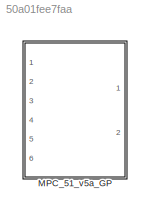
MODEL slx_50a01fee7faa
KIND library
CONFIG AbsTol = auto
CONFIG EnableMultiTasking = off
CONFIG FixedStep = auto
CONFIG MaxStep = auto
CONFIG MinStep = auto
CONFIG RelTol = 1e-3
CONFIG SampleTimeConstraint = Unconstrained
CONFIG Solver = VariableStepAuto
CONFIG SolverName = VariableStepAuto
CONFIG StartTime = 0.0
CONFIG StopTime = 10.0
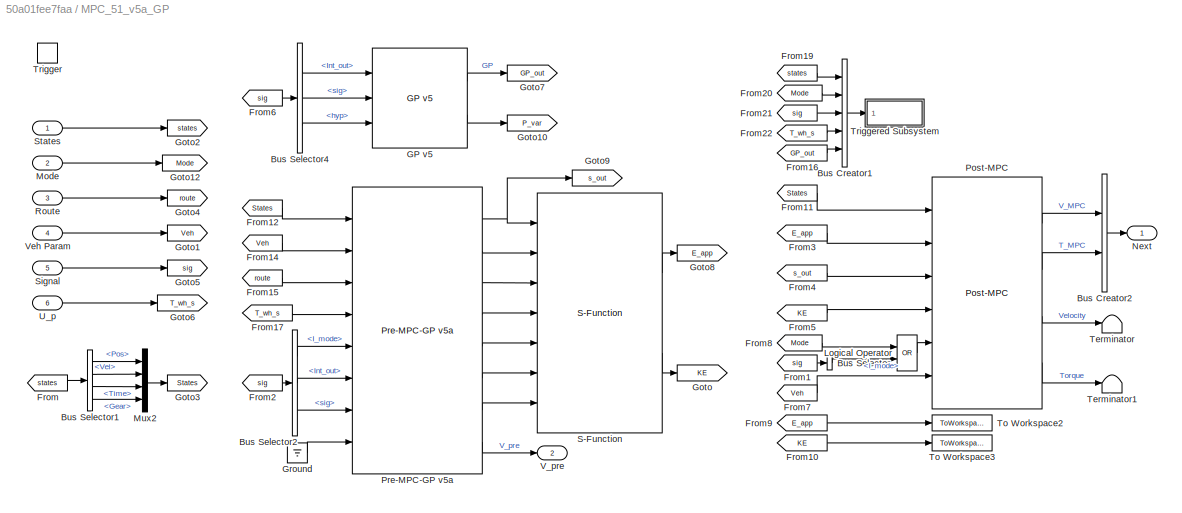
BLOCK [SubSystem] MPC_51_v5a_GP
  Ports = [6, 2, 0, 1]
  RequestExecContextInheritance = off
  TreatAsAtomicUnit = on
BLOCK [BusCreator] MPC_51_v5a_GP/Bus Creator1
  DisplayOption = bar
  InheritFromInputs = on
  Inputs = 5
  Ports = [5, 1]
BLOCK [BusCreator] MPC_51_v5a_GP/Bus Creator2
  DisplayOption = bar
  InheritFromInputs = on
  Inputs = 2
  Ports = [2, 1]
BLOCK [BusSelector] MPC_51_v5a_GP/Bus Selector
  OutputSignals = Signal.I_mode
  Ports = [1, 1]
BLOCK [BusSelector] MPC_51_v5a_GP/Bus Selector1
  OutputSignals = Pos,Vel,Time,Gear
  Ports = [1, 4]
BLOCK [BusSelector] MPC_51_v5a_GP/Bus Selector2
  OutputSignals = I_mode,Int_out,sig
  Ports = [1, 3]
BLOCK [BusSelector] MPC_51_v5a_GP/Bus Selector4
  Commented = on
  OutputSignals = Int_out,sig,hyp
  Ports = [1, 3]
BLOCK [From] MPC_51_v5a_GP/From
  GotoTag = states
BLOCK [From] MPC_51_v5a_GP/From1
  GotoTag = sig
BLOCK [From] MPC_51_v5a_GP/From10
  GotoTag = KE
BLOCK [From] MPC_51_v5a_GP/From11
  GotoTag = States
BLOCK [From] MPC_51_v5a_GP/From12
  GotoTag = States
BLOCK [From] MPC_51_v5a_GP/From14
  GotoTag = Veh
BLOCK [From] MPC_51_v5a_GP/From15
  GotoTag = route
BLOCK [From] MPC_51_v5a_GP/From16
  GotoTag = GP_out
BLOCK [From] MPC_51_v5a_GP/From17
  GotoTag = T_wh_s
BLOCK [From] MPC_51_v5a_GP/From19
  GotoTag = states
BLOCK [From] MPC_51_v5a_GP/From2
  GotoTag = sig
BLOCK [From] MPC_51_v5a_GP/From20
  GotoTag = Mode
BLOCK [From] MPC_51_v5a_GP/From21
  GotoTag = sig
BLOCK [From] MPC_51_v5a_GP/From22
  GotoTag = T_wh_s
BLOCK [From] MPC_51_v5a_GP/From3
  GotoTag = E_app
BLOCK [From] MPC_51_v5a_GP/From4
  GotoTag = s_out
BLOCK [From] MPC_51_v5a_GP/From5
  GotoTag = KE
BLOCK [From] MPC_51_v5a_GP/From6
  Commented = on
  GotoTag = sig
BLOCK [From] MPC_51_v5a_GP/From7
  GotoTag = Veh
BLOCK [From] MPC_51_v5a_GP/From8
  GotoTag = Mode
BLOCK [From] MPC_51_v5a_GP/From9
  GotoTag = E_app
BLOCK [Reference] MPC_51_v5a_GP/GP v5  REF=MPC_Sublibraries/GP v5
  Commented = on
  Ports = [3, 2]
  SourceBlock = MPC_Sublibraries/GP v5
BLOCK [Goto] MPC_51_v5a_GP/Goto
  GotoTag = KE
BLOCK [Goto] MPC_51_v5a_GP/Goto1
  GotoTag = Veh
BLOCK [Goto] MPC_51_v5a_GP/Goto10
  Commented = on
  GotoTag = P_var
BLOCK [Goto] MPC_51_v5a_GP/Goto12
  GotoTag = Mode
BLOCK [Goto] MPC_51_v5a_GP/Goto2
  GotoTag = states
BLOCK [Goto] MPC_51_v5a_GP/Goto3
  GotoTag = States
BLOCK [Goto] MPC_51_v5a_GP/Goto4
  GotoTag = route
BLOCK [Goto] MPC_51_v5a_GP/Goto5
  GotoTag = sig
BLOCK [Goto] MPC_51_v5a_GP/Goto6
  GotoTag = T_wh_s
BLOCK [Goto] MPC_51_v5a_GP/Goto7
  Commented = on
  GotoTag = GP_out
BLOCK [Goto] MPC_51_v5a_GP/Goto8
  GotoTag = E_app
BLOCK [Goto] MPC_51_v5a_GP/Goto9
  GotoTag = s_out
BLOCK [Ground] MPC_51_v5a_GP/Ground
BLOCK [Logic] MPC_51_v5a_GP/Logical Operator
  AllPortsSameDT = off
  Operator = OR
  OutDataTypeStr = boolean
  Ports = [2, 1]
BLOCK [Inport] MPC_51_v5a_GP/Mode
  Port = 2
BLOCK [Mux] MPC_51_v5a_GP/Mux2
  DisplayOption = bar
  Ports = [4, 1]
BLOCK [Outport] MPC_51_v5a_GP/Next
  VectorParamsAs1DForOutWhenUnconnected = off
BLOCK [Reference] MPC_51_v5a_GP/Post-MPC  REF=MPC_Sublibraries/Post-MPC
  Ports = [6, 4]
  SourceBlock = MPC_Sublibraries/Post-MPC
BLOCK [Reference] MPC_51_v5a_GP/Pre-MPC-GP v5a  REF=MPC_Sublibraries/Pre-MPC-GP v5a
  Ports = [8, 8]
  SourceBlock = MPC_Sublibraries/Pre-MPC-GP v5a
BLOCK [Inport] MPC_51_v5a_GP/Route
  Port = 3
BLOCK [Reference] MPC_51_v5a_GP/S-Function  REF=MPC_Sublibraries/S-Function
  Ports = [7, 2]
  SourceBlock = MPC_Sublibraries/S-Function
BLOCK [Inport] MPC_51_v5a_GP/Signal
  Port = 5
BLOCK [Inport] MPC_51_v5a_GP/States
BLOCK [Terminator] MPC_51_v5a_GP/Terminator
BLOCK [Terminator] MPC_51_v5a_GP/Terminator1
BLOCK [ToWorkspace] MPC_51_v5a_GP/To Workspace2
  FixptAsFi = on
  MaxDataPoints = inf
  Ports = [1]
  SampleTime = -1
  VariableName = E_app
BLOCK [ToWorkspace] MPC_51_v5a_GP/To Workspace3
  FixptAsFi = on
  MaxDataPoints = inf
  Ports = [1]
  SampleTime = -1
  VariableName = KE
BLOCK [TriggerPort] MPC_51_v5a_GP/Trigger
  Ports = []
  StatesWhenEnabling = held
  TriggerType = falling
  VariantControl = Variant
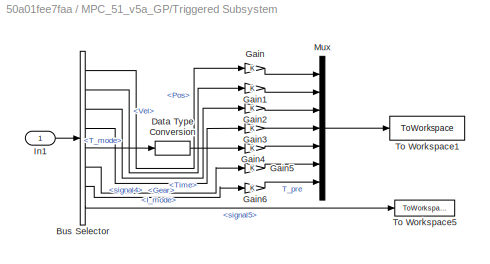
BLOCK [SubSystem] MPC_51_v5a_GP/Triggered Subsystem
  Ports = [1]
  RequestExecContextInheritance = off
  TreatAsAtomicUnit = on
BLOCK [BusSelector] MPC_51_v5a_GP/Triggered Subsystem/Bus Selector
  OutputSignals = signal1.Pos,signal1.Vel,signal1.Time,signal1.Gear,signal2.T_mode,signal3.I_mode,signal4,signal5
  Ports = [1, 8]
BLOCK [DataTypeConversion] MPC_51_v5a_GP/Triggered Subsystem/Data Type Conversion
  OutDataTypeStr = double
  RndMeth = Floor
  SaturateOnIntegerOverflow = off
BLOCK [Gain] MPC_51_v5a_GP/Triggered Subsystem/Gain
BLOCK [Gain] MPC_51_v5a_GP/Triggered Subsystem/Gain1
BLOCK [Gain] MPC_51_v5a_GP/Triggered Subsystem/Gain2
BLOCK [Gain] MPC_51_v5a_GP/Triggered Subsystem/Gain3
BLOCK [Gain] MPC_51_v5a_GP/Triggered Subsystem/Gain4
BLOCK [Gain] MPC_51_v5a_GP/Triggered Subsystem/Gain5
BLOCK [Gain] MPC_51_v5a_GP/Triggered Subsystem/Gain6
BLOCK [Inport] MPC_51_v5a_GP/Triggered Subsystem/In1
BLOCK [Mux] MPC_51_v5a_GP/Triggered Subsystem/Mux
  DisplayOption = bar
  Inputs = 7
  Ports = [7, 1]
BLOCK [ToWorkspace] MPC_51_v5a_GP/Triggered Subsystem/To Workspace1
  MaxDataPoints = inf
  Ports = [1]
  SampleTime = -1
  SaveFormat = Structure With Time
  VariableName = MPC_input
BLOCK [ToWorkspace] MPC_51_v5a_GP/Triggered Subsystem/To Workspace5
  MaxDataPoints = inf
  Ports = [1]
  SampleTime = -1
  VariableName = GP_out
BLOCK [Inport] MPC_51_v5a_GP/U_p
  Port = 6
BLOCK [Outport] MPC_51_v5a_GP/V_pre
  Port = 2
  VectorParamsAs1DForOutWhenUnconnected = off
BLOCK [Inport] MPC_51_v5a_GP/Veh Param
  Port = 4
LINE MPC_51_v5a_GP/Bus Creator1:1 -> MPC_51_v5a_GP/Triggered Subsystem:1
LINE MPC_51_v5a_GP/Bus Creator2:1 -> MPC_51_v5a_GP/Next:1
LINE MPC_51_v5a_GP/Bus Selector1:1 -> MPC_51_v5a_GP/Mux2:1
LINE MPC_51_v5a_GP/Bus Selector1:2 -> MPC_51_v5a_GP/Mux2:2
LINE MPC_51_v5a_GP/Bus Selector1:3 -> MPC_51_v5a_GP/Mux2:3
LINE MPC_51_v5a_GP/Bus Selector1:4 -> MPC_51_v5a_GP/Mux2:4
LINE MPC_51_v5a_GP/Bus Selector2:1 -> MPC_51_v5a_GP/Pre-MPC-GP v5a:5
LINE MPC_51_v5a_GP/Bus Selector2:2 -> MPC_51_v5a_GP/Pre-MPC-GP v5a:6
LINE MPC_51_v5a_GP/Bus Selector2:3 -> MPC_51_v5a_GP/Pre-MPC-GP v5a:7
LINE MPC_51_v5a_GP/Bus Selector4:1 -> MPC_51_v5a_GP/GP v5:1
LINE MPC_51_v5a_GP/Bus Selector4:2 -> MPC_51_v5a_GP/GP v5:2
LINE MPC_51_v5a_GP/Bus Selector4:3 -> MPC_51_v5a_GP/GP v5:3
LINE MPC_51_v5a_GP/Bus Selector:1 -> MPC_51_v5a_GP/Logical Operator:2
LINE MPC_51_v5a_GP/From10:1 -> MPC_51_v5a_GP/To Workspace3:1
LINE MPC_51_v5a_GP/From11:1 -> MPC_51_v5a_GP/Post-MPC:1
LINE MPC_51_v5a_GP/From12:1 -> MPC_51_v5a_GP/Pre-MPC-GP v5a:1
LINE MPC_51_v5a_GP/From14:1 -> MPC_51_v5a_GP/Pre-MPC-GP v5a:2
LINE MPC_51_v5a_GP/From15:1 -> MPC_51_v5a_GP/Pre-MPC-GP v5a:3
LINE MPC_51_v5a_GP/From16:1 -> MPC_51_v5a_GP/Bus Creator1:5
LINE MPC_51_v5a_GP/From17:1 -> MPC_51_v5a_GP/Pre-MPC-GP v5a:4
LINE MPC_51_v5a_GP/From19:1 -> MPC_51_v5a_GP/Bus Creator1:1
LINE MPC_51_v5a_GP/From1:1 -> MPC_51_v5a_GP/Bus Selector:1
LINE MPC_51_v5a_GP/From20:1 -> MPC_51_v5a_GP/Bus Creator1:2
LINE MPC_51_v5a_GP/From21:1 -> MPC_51_v5a_GP/Bus Creator1:3
LINE MPC_51_v5a_GP/From22:1 -> MPC_51_v5a_GP/Bus Creator1:4
LINE MPC_51_v5a_GP/From2:1 -> MPC_51_v5a_GP/Bus Selector2:1
LINE MPC_51_v5a_GP/From3:1 -> MPC_51_v5a_GP/Post-MPC:2
LINE MPC_51_v5a_GP/From4:1 -> MPC_51_v5a_GP/Post-MPC:3
LINE MPC_51_v5a_GP/From5:1 -> MPC_51_v5a_GP/Post-MPC:4
LINE MPC_51_v5a_GP/From6:1 -> MPC_51_v5a_GP/Bus Selector4:1
LINE MPC_51_v5a_GP/From7:1 -> MPC_51_v5a_GP/Post-MPC:6
LINE MPC_51_v5a_GP/From8:1 -> MPC_51_v5a_GP/Logical Operator:1
LINE MPC_51_v5a_GP/From9:1 -> MPC_51_v5a_GP/To Workspace2:1
LINE MPC_51_v5a_GP/From:1 -> MPC_51_v5a_GP/Bus Selector1:1
LINE MPC_51_v5a_GP/GP v5:1 -> MPC_51_v5a_GP/Goto7:1
LINE MPC_51_v5a_GP/GP v5:2 -> MPC_51_v5a_GP/Goto10:1
LINE MPC_51_v5a_GP/Ground:1 -> MPC_51_v5a_GP/Pre-MPC-GP v5a:8
LINE MPC_51_v5a_GP/Logical Operator:1 -> MPC_51_v5a_GP/Post-MPC:5
LINE MPC_51_v5a_GP/Mode:1 -> MPC_51_v5a_GP/Goto12:1
LINE MPC_51_v5a_GP/Mux2:1 -> MPC_51_v5a_GP/Goto3:1
LINE MPC_51_v5a_GP/Post-MPC:1 -> MPC_51_v5a_GP/Bus Creator2:1
LINE MPC_51_v5a_GP/Post-MPC:2 -> MPC_51_v5a_GP/Bus Creator2:2
LINE MPC_51_v5a_GP/Post-MPC:3 -> MPC_51_v5a_GP/Terminator:1
LINE MPC_51_v5a_GP/Post-MPC:4 -> MPC_51_v5a_GP/Terminator1:1
NET MPC_51_v5a_GP/Pre-MPC-GP v5a:1 -> MPC_51_v5a_GP/Goto9:1, MPC_51_v5a_GP/S-Function:1
LINE MPC_51_v5a_GP/Pre-MPC-GP v5a:2 -> MPC_51_v5a_GP/S-Function:2
LINE MPC_51_v5a_GP/Pre-MPC-GP v5a:3 -> MPC_51_v5a_GP/S-Function:3
LINE MPC_51_v5a_GP/Pre-MPC-GP v5a:4 -> MPC_51_v5a_GP/S-Function:4
LINE MPC_51_v5a_GP/Pre-MPC-GP v5a:5 -> MPC_51_v5a_GP/S-Function:5
LINE MPC_51_v5a_GP/Pre-MPC-GP v5a:6 -> MPC_51_v5a_GP/S-Function:6
LINE MPC_51_v5a_GP/Pre-MPC-GP v5a:7 -> MPC_51_v5a_GP/S-Function:7
LINE MPC_51_v5a_GP/Pre-MPC-GP v5a:8 -> MPC_51_v5a_GP/V_pre:1
LINE MPC_51_v5a_GP/Route:1 -> MPC_51_v5a_GP/Goto4:1
LINE MPC_51_v5a_GP/S-Function:1 -> MPC_51_v5a_GP/Goto8:1
LINE MPC_51_v5a_GP/S-Function:2 -> MPC_51_v5a_GP/Goto:1
LINE MPC_51_v5a_GP/Signal:1 -> MPC_51_v5a_GP/Goto5:1
LINE MPC_51_v5a_GP/States:1 -> MPC_51_v5a_GP/Goto2:1
LINE MPC_51_v5a_GP/Triggered Subsystem/Bus Selector:1 -> MPC_51_v5a_GP/Triggered Subsystem/Gain:1
LINE MPC_51_v5a_GP/Triggered Subsystem/Bus Selector:2 -> MPC_51_v5a_GP/Triggered Subsystem/Gain1:1
LINE MPC_51_v5a_GP/Triggered Subsystem/Bus Selector:3 -> MPC_51_v5a_GP/Triggered Subsystem/Gain2:1
LINE MPC_51_v5a_GP/Triggered Subsystem/Bus Selector:4 -> MPC_51_v5a_GP/Triggered Subsystem/Gain3:1
LINE MPC_51_v5a_GP/Triggered Subsystem/Bus Selector:5 -> MPC_51_v5a_GP/Triggered Subsystem/Data Type Conversion:1
LINE MPC_51_v5a_GP/Triggered Subsystem/Bus Selector:6 -> MPC_51_v5a_GP/Triggered Subsystem/Gain5:1
LINE MPC_51_v5a_GP/Triggered Subsystem/Bus Selector:7 -> MPC_51_v5a_GP/Triggered Subsystem/Gain6:1
LINE MPC_51_v5a_GP/Triggered Subsystem/Bus Selector:8 -> MPC_51_v5a_GP/Triggered Subsystem/To Workspace5:1
LINE MPC_51_v5a_GP/Triggered Subsystem/Data Type Conversion:1 -> MPC_51_v5a_GP/Triggered Subsystem/Gain4:1
LINE MPC_51_v5a_GP/Triggered Subsystem/Gain1:1 -> MPC_51_v5a_GP/Triggered Subsystem/Mux:2
LINE MPC_51_v5a_GP/Triggered Subsystem/Gain2:1 -> MPC_51_v5a_GP/Triggered Subsystem/Mux:3
LINE MPC_51_v5a_GP/Triggered Subsystem/Gain3:1 -> MPC_51_v5a_GP/Triggered Subsystem/Mux:4
LINE MPC_51_v5a_GP/Triggered Subsystem/Gain4:1 -> MPC_51_v5a_GP/Triggered Subsystem/Mux:5
LINE MPC_51_v5a_GP/Triggered Subsystem/Gain5:1 -> MPC_51_v5a_GP/Triggered Subsystem/Mux:6
LINE MPC_51_v5a_GP/Triggered Subsystem/Gain6:1 -> MPC_51_v5a_GP/Triggered Subsystem/Mux:7
LINE MPC_51_v5a_GP/Triggered Subsystem/Gain:1 -> MPC_51_v5a_GP/Triggered Subsystem/Mux:1
LINE MPC_51_v5a_GP/Triggered Subsystem/In1:1 -> MPC_51_v5a_GP/Triggered Subsystem/Bus Selector:1
LINE MPC_51_v5a_GP/Triggered Subsystem/Mux:1 -> MPC_51_v5a_GP/Triggered Subsystem/To Workspace1:1
LINE MPC_51_v5a_GP/U_p:1 -> MPC_51_v5a_GP/Goto6:1
LINE MPC_51_v5a_GP/Veh Param:1 -> MPC_51_v5a_GP/Goto1:1
note: NET lines group one-source signal fan-out (src -> all destinations, sorted); 1:1 wires keep LINE
